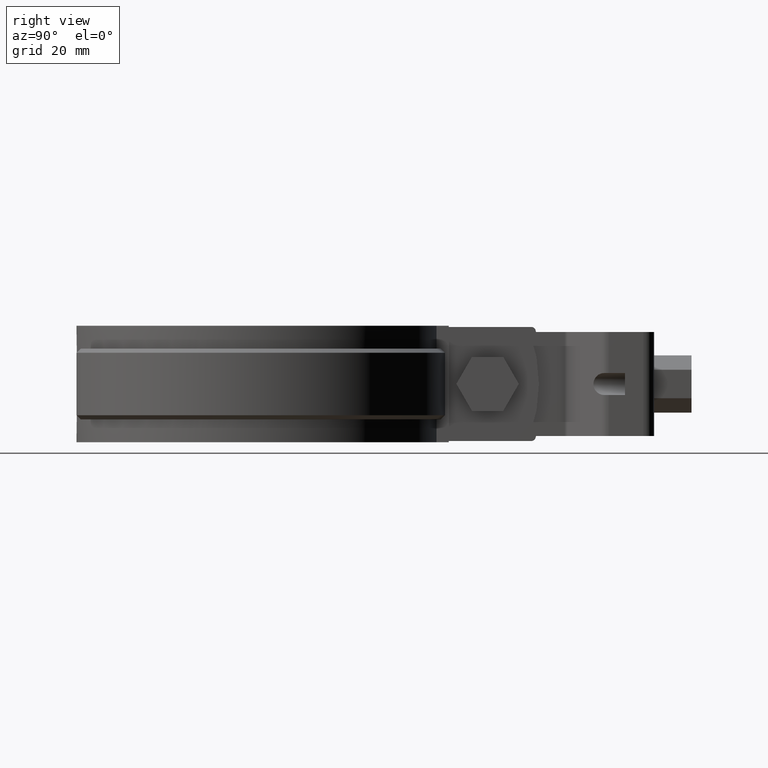
[diagram: clean part render]
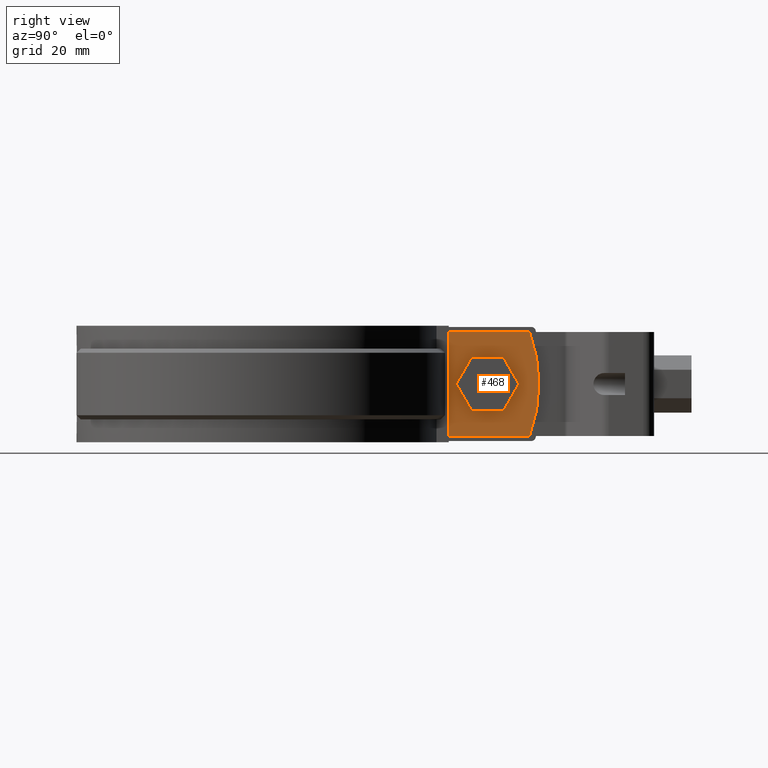
[diagram: same view with one face highlighted and labeled with its STEP entity id]
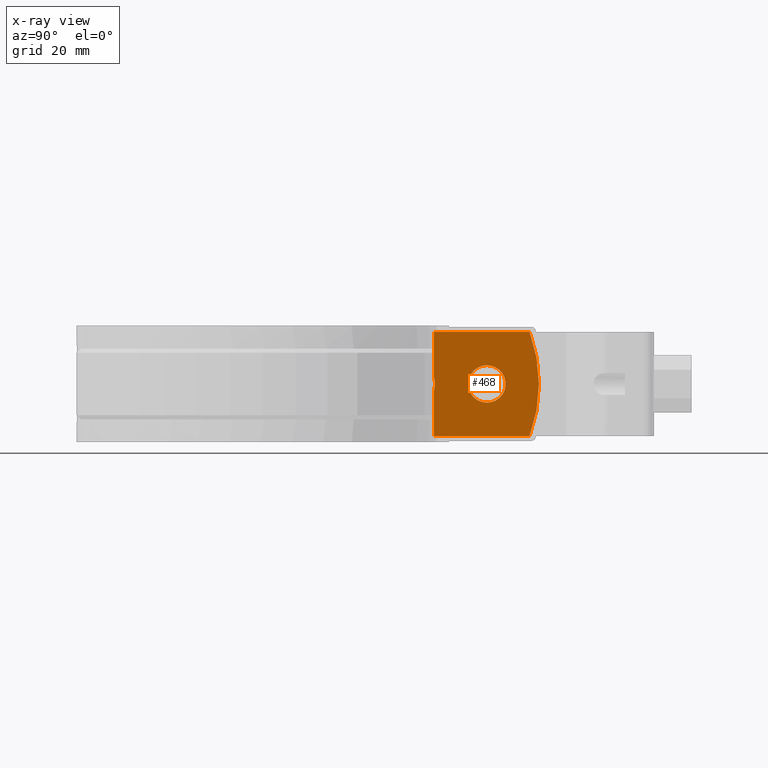
[diagram: x-ray of the same camera — body ghosted, the highlighted face saturated]
A machine part, right view. The second image highlights one B-rep face of the part: STEP entity #468.
The next image is the same camera in x-ray: the body ghosted, the highlighted face saturated — about 0% of this face is hidden behind the body in this view.
In plain terms, the highlighted planar face has unit normal (1, 0, 0).
Its self-contained STEP definition (entity closure, byte-faithful):
#468 = ADVANCED_FACE( '', ( #840, #841 ), #842, .T. );
#840 = FACE_OUTER_BOUND( '', #1688, .T. );
#841 = FACE_BOUND( '', #1689, .T. );
#842 = PLANE( '', #1690 );
#1688 = EDGE_LOOP( '', ( #3117, #3118, #3119, #3120, #3121, #3122 ) );
#1689 = EDGE_LOOP( '', ( #3123 ) );
#1690 = AXIS2_PLACEMENT_3D( '', #3124, #3125, #3126 );
#3117 = ORIENTED_EDGE( '', *, *, #7337, .F. );
#3118 = ORIENTED_EDGE( '', *, *, #7336, .F. );
#3119 = ORIENTED_EDGE( '', *, *, #7338, .T. );
#3120 = ORIENTED_EDGE( '', *, *, #7339, .T. );
#3121 = ORIENTED_EDGE( '', *, *, #7285, .F. );
#3122 = ORIENTED_EDGE( '', *, *, #7340, .F. );
#3123 = ORIENTED_EDGE( '', *, *, #7333, .T. );
#3124 = CARTESIAN_POINT( '', ( 5.00000000000000, 42.4264068711929, -12.5000000000000 ) );
#3125 = DIRECTION( '', ( 1.00000000000000, 2.34067589742701E-049, 3.79805155346016E-033 ) );
#3126 = DIRECTION( '', ( 0.000000000000000, 1.00000000000000, -6.16283340149655E-017 ) );
#7285 = EDGE_CURVE( '', #8292, #8294, #8295, .F. );
#7333 = EDGE_CURVE( '', #8382, #8382, #8383, .F. );
#7336 = EDGE_CURVE( '', #8386, #8384, #8388, .T. );
#7337 = EDGE_CURVE( '', #8384, #8389, #8390, .T. );
#7338 = EDGE_CURVE( '', #8386, #8391, #8392, .T. );
#7339 = EDGE_CURVE( '', #8391, #8294, #8393, .T. );
#7340 = EDGE_CURVE( '', #8389, #8292, #8394, .T. );
#8292 = VERTEX_POINT( '', #9965 );
#8294 = VERTEX_POINT( '', #9967 );
#8295 = LINE( '', #9968, #9969 );
#8382 = VERTEX_POINT( '', #10516 );
#8383 = CIRCLE( '', #10517, 4.50000000000000 );
#8384 = VERTEX_POINT( '', #10518 );
#8386 = VERTEX_POINT( '', #10533 );
#8388 = LINE( '', #10535, #10536 );
#8389 = VERTEX_POINT( '', #10537 );
#8390 = B_SPLINE_CURVE_WITH_KNOTS( '', 3, ( #10538, #10539, #10540, #10541, #10542, #10543, #10544, #10545 ), .UNSPECIFIED., .F., .F., ( 4, 2, 2, 4 ), ( 0.000000000000000, 0.00181040095050447, 0.00271560142575671, 0.00362080190100895 ), .UNSPECIFIED. );
#8391 = VERTEX_POINT( '', #10546 );
#8392 = LINE( '', #10547, #10548 );
#8393 = CIRCLE( '', #10549, 36.0000000000000 );
#8394 = LINE( '', #10550, #10551 );
#9965 = CARTESIAN_POINT( '', ( 5.00000000000000, 42.4264068711929, 12.5000000000000 ) );
#9967 = CARTESIAN_POINT( '', ( 5.00000000000000, 65.4541635475412, 12.5000000000000 ) );
#9968 = CARTESIAN_POINT( '', ( 5.00000000000000, 42.4264068711929, 12.5000000000000 ) );
#9969 = VECTOR( '', #14310, 1000.00000000000 );
#10516 = CARTESIAN_POINT( '', ( 5.00000000000000, 55.1939798987516, -4.50000000000000 ) );
#10517 = AXIS2_PLACEMENT_3D( '', #14365, #14366, #14367 );
#10518 = CARTESIAN_POINT( '', ( 4.99999999999999, 42.4264068711929, -1.79284466253156 ) );
#10533 = CARTESIAN_POINT( '', ( 5.00000000000000, 42.4264068711929, -12.5000000000000 ) );
#10535 = CARTESIAN_POINT( '', ( 5.00000000000000, 42.4264068711929, -12.5000000000000 ) );
#10536 = VECTOR( '', #14371, 1000.00000000000 );
#10537 = CARTESIAN_POINT( '', ( 5.00000000000000, 42.4264068711929, 1.79284466253234 ) );
#10538 = CARTESIAN_POINT( '', ( 4.99999999999999, 42.4264068711929, -1.79284466253156 ) );
#10539 = CARTESIAN_POINT( '', ( 4.99999999999999, 42.6110142085346, -1.20944188250804 ) );
#10540 = CARTESIAN_POINT( '', ( 4.99999999999999, 42.7060680324159, -0.613408656815262 ) );
#10541 = CARTESIAN_POINT( '', ( 4.99999999999999, 42.7067130957009, 0.300659500729342 ) );
#10542 = CARTESIAN_POINT( '', ( 5.00000000000000, 42.6823540383265, 0.606214203177669 ) );
#10543 = CARTESIAN_POINT( '', ( 5.00000000000000, 42.5883535930922, 1.20535285069739 ) );
#10544 = CARTESIAN_POINT( '', ( 5.00000000000000, 42.5187412635258, 1.50104617849322 ) );
#10545 = CARTESIAN_POINT( '', ( 5.00000000000001, 42.4264068711928, 1.79284466253233 ) );
#10546 = CARTESIAN_POINT( '', ( 5.00000000000000, 65.4541635475412, -12.5000000000000 ) );
#10547 = CARTESIAN_POINT( '', ( 5.00000000000000, 42.4264068711929, -12.5000000000000 ) );
#10548 = VECTOR( '', #14372, 1000.00000000000 );
#10549 = AXIS2_PLACEMENT_3D( '', #14373, #14374, #14375 );
#10550 = CARTESIAN_POINT( '', ( 5.00000000000000, 42.4264068711929, -12.5000000000000 ) );
#10551 = VECTOR( '', #14376, 1000.00000000000 );
#14310 = DIRECTION( '', ( 2.34067589742701E-049, -1.00000000000000, 0.000000000000000 ) );
#14365 = CARTESIAN_POINT( '', ( 5.00000000000000, 55.1939798987516, -1.73472347597681E-015 ) );
#14366 = DIRECTION( '', ( 1.00000000000000, 2.34067589742701E-049, 3.79805155346016E-033 ) );
#14367 = DIRECTION( '', ( 3.79805155346016E-033, 0.000000000000000, -1.00000000000000 ) );
#14371 = DIRECTION( '', ( 0.000000000000000, 0.000000000000000, 1.00000000000000 ) );
#14372 = DIRECTION( '', ( -2.34067589742701E-049, 1.00000000000000, 0.000000000000000 ) );
#14373 = CARTESIAN_POINT( '', ( 5.00000000000000, 31.6939798987516, -5.55111512312578E-014 ) );
#14374 = DIRECTION( '', ( 1.00000000000000, 2.34067589742701E-049, 3.79805155346016E-033 ) );
#14375 = DIRECTION( '', ( 3.79805155346016E-033, 0.000000000000000, -1.00000000000000 ) );
#14376 = DIRECTION( '', ( 0.000000000000000, 0.000000000000000, 1.00000000000000 ) );